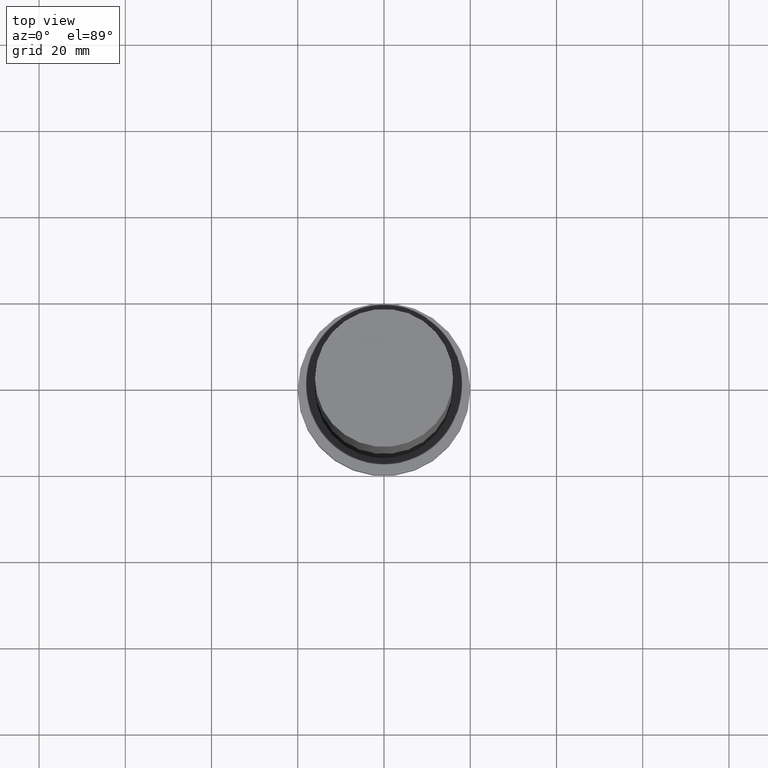
[diagram: clean part render]
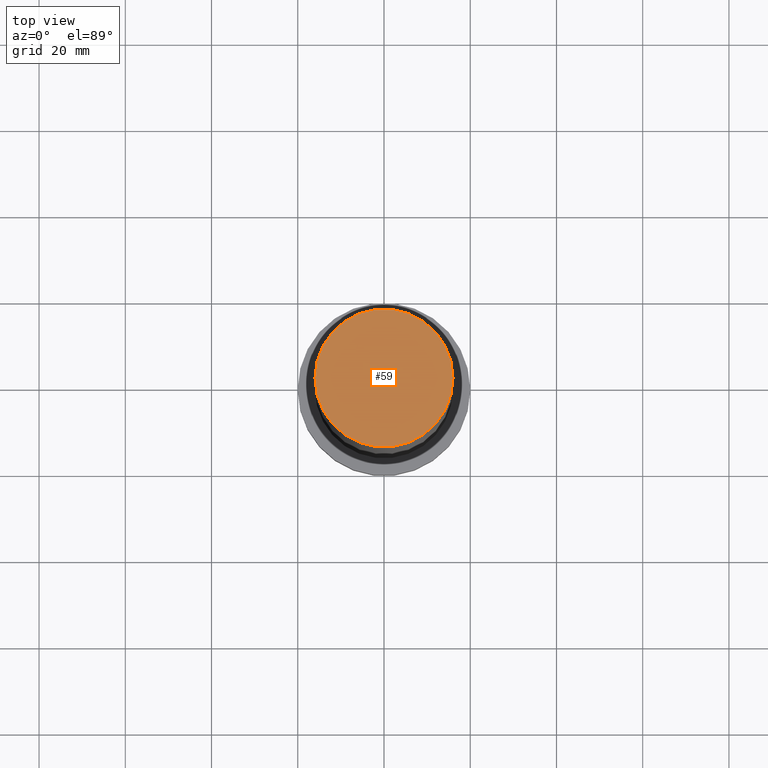
[diagram: same view with one face highlighted and labeled with its STEP entity id]
A machine part, top view. The second image highlights one B-rep face of the part: STEP entity #59.
In plain terms, the highlighted planar face has unit normal (0, 0, 1).
Its self-contained STEP definition (entity closure, byte-faithful):
#14 = FACE_OUTER_BOUND ( 'NONE', #88, .T. ) ;
#19 = AXIS2_PLACEMENT_3D ( 'NONE', #186, #80, #168 ) ;
#20 = CARTESIAN_POINT ( 'NONE',  ( 16.00000000000000000, 1.959434878635765131E-15, 160.0000000000000000 ) ) ;
#23 = CARTESIAN_POINT ( 'NONE',  ( -16.00000000000000000, 0.000000000000000000, 160.0000000000000000 ) ) ;
#24 = CARTESIAN_POINT ( 'NONE',  ( 0.000000000000000000, 0.000000000000000000, 160.0000000000000000 ) ) ;
#38 = CIRCLE ( 'NONE', #19, 16.00000000000000000 ) ;
#41 = DIRECTION ( 'NONE',  ( 0.000000000000000000, 0.000000000000000000, 1.000000000000000000 ) ) ;
#59 = ADVANCED_FACE ( 'NONE', ( #14 ), #93, .T. ) ;
#80 = DIRECTION ( 'NONE',  ( 0.000000000000000000, 0.000000000000000000, 1.000000000000000000 ) ) ;
#88 = EDGE_LOOP ( 'NONE', ( #91, #216 ) ) ;
#91 = ORIENTED_EDGE ( 'NONE', *, *, #208, .T. ) ;
#93 = PLANE ( 'NONE',  #133 ) ;
#129 = EDGE_CURVE ( 'NONE', #155, #178, #192, .T. ) ;
#133 = AXIS2_PLACEMENT_3D ( 'NONE', #214, #196, #176 ) ;
#147 = AXIS2_PLACEMENT_3D ( 'NONE', #24, #41, #200 ) ;
#155 = VERTEX_POINT ( 'NONE', #20 ) ;
#168 = DIRECTION ( 'NONE',  ( 1.000000000000000000, 0.000000000000000000, 0.000000000000000000 ) ) ;
#176 = DIRECTION ( 'NONE',  ( 1.000000000000000000, 0.000000000000000000, -0.000000000000000000 ) ) ;
#178 = VERTEX_POINT ( 'NONE', #23 ) ;
#186 = CARTESIAN_POINT ( 'NONE',  ( 0.000000000000000000, 0.000000000000000000, 160.0000000000000000 ) ) ;
#192 = CIRCLE ( 'NONE', #147, 16.00000000000000000 ) ;
#196 = DIRECTION ( 'NONE',  ( 0.000000000000000000, 0.000000000000000000, 1.000000000000000000 ) ) ;
#200 = DIRECTION ( 'NONE',  ( 1.000000000000000000, 0.000000000000000000, 0.000000000000000000 ) ) ;
#208 = EDGE_CURVE ( 'NONE', #178, #155, #38, .T. ) ;
#214 = CARTESIAN_POINT ( 'NONE',  ( 0.000000000000000000, 0.000000000000000000, 160.0000000000000000 ) ) ;
#216 = ORIENTED_EDGE ( 'NONE', *, *, #129, .T. ) ;